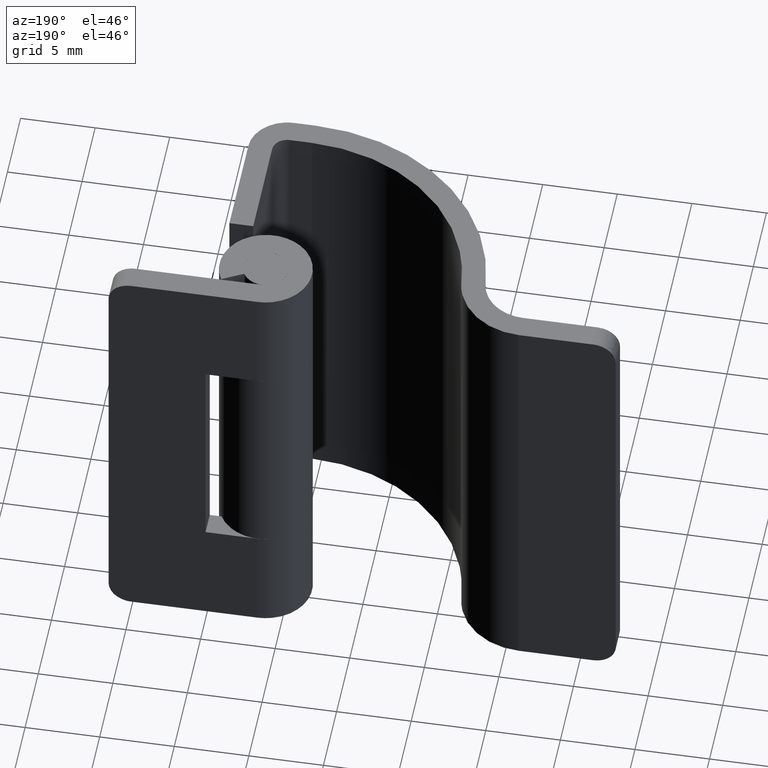
[diagram: clean part render]
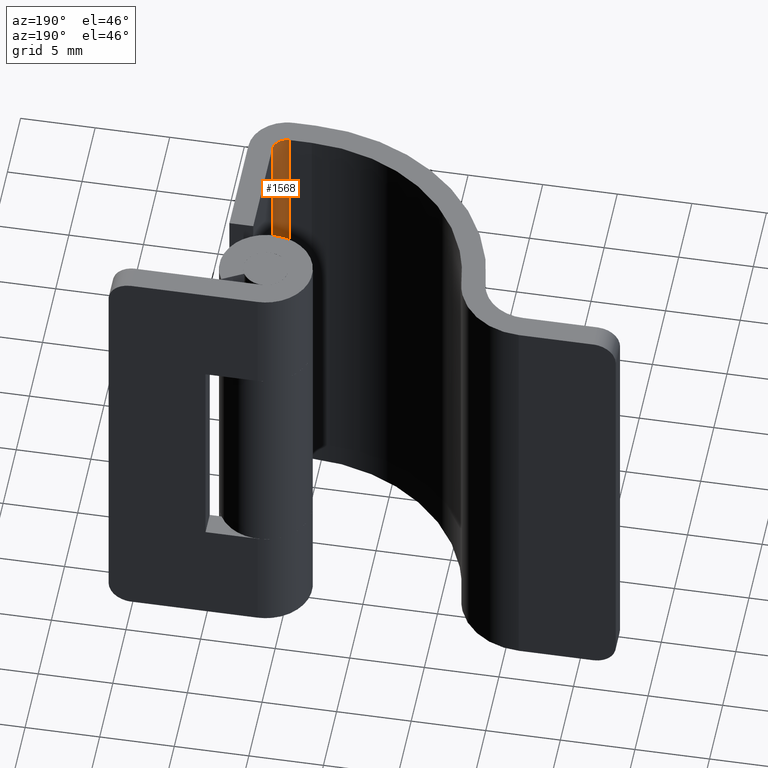
[diagram: same view with one face highlighted and labeled with its STEP entity id]
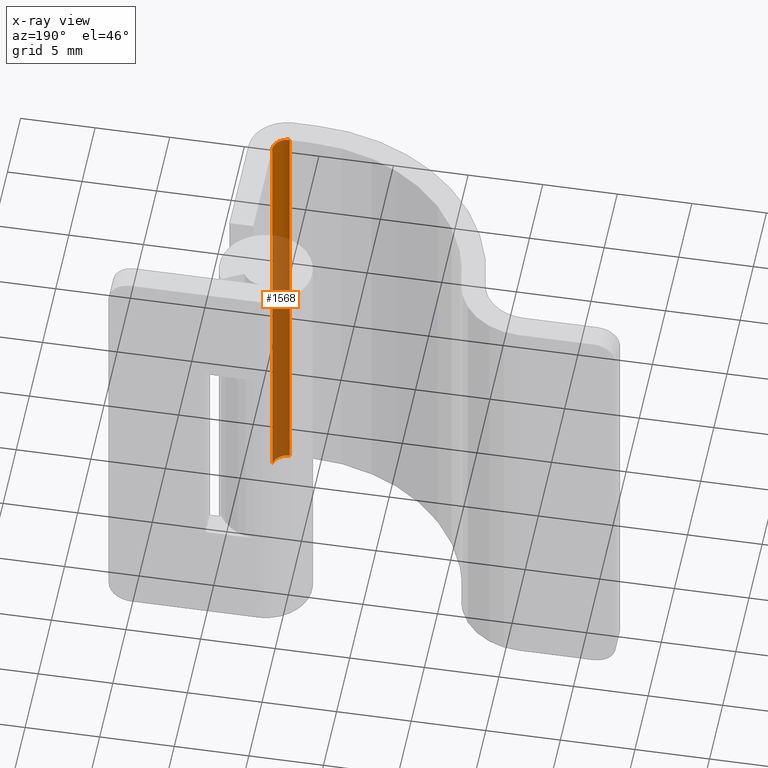
[diagram: x-ray of the same camera — body ghosted, the highlighted face saturated]
A machine part, auxiliary view. The second image highlights one B-rep face of the part: STEP entity #1568.
The next image is the same camera in x-ray: the body ghosted, the highlighted face saturated — about 70% of this face is hidden behind the body in this view.
In plain terms, the highlighted face is a freeform B-spline surface patch.
Its self-contained STEP definition (entity closure, byte-faithful):
#1493=CARTESIAN_POINT('',(-3.0,-11.900002000000001,30.0));
#1494=VERTEX_POINT('',#1493);
#1500=CARTESIAN_POINT('',(-3.0,-11.900002000000001,0.0));
#1501=VERTEX_POINT('',#1500);
#1502=CARTESIAN_POINT('',(-3.0,-11.900002000000001,0.0));
#1503=CARTESIAN_POINT('',(-3.0,-11.900002000000001,30.0));
#1504=QUASI_UNIFORM_CURVE('',1,(#1502,#1503),.UNSPECIFIED.,.F.,.U.);
#1505=EDGE_CURVE('',#1501,#1494,#1504,.T.);
#1516=CARTESIAN_POINT('',(-2.000342675024443,-10.873825051692130,-0.750000000000001));
#1517=CARTESIAN_POINT('',(-2.000342675024443,-10.873825051692130,30.768750000000001));
#1518=CARTESIAN_POINT('',(-1.971775548804007,-11.964759588594118,-0.750000000000001));
#1519=CARTESIAN_POINT('',(-1.971775548804007,-11.964759588594118,30.768750000000001));
#1520=CARTESIAN_POINT('',(-3.061048539534854,-11.898136798421870,-0.750000000000001));
#1521=CARTESIAN_POINT('',(-3.061048539534854,-11.898136798421870,30.768750000000001));
#1529=(BOUNDED_SURFACE()B_SPLINE_SURFACE(1,2,((#1516,#1518,#1520),(#1517,#1519,#1521)),.UNSPECIFIED.,.F.,.F.,.U.)B_SPLINE_SURFACE_WITH_KNOTS((2,2),(3,3),(0.0,31.518750000000001),(0.0,1.0),.UNSPECIFIED.)GEOMETRIC_REPRESENTATION_ITEM()RATIONAL_B_SPLINE_SURFACE(((1.0,0.675590207615660,1.0),(1.0,0.675590207615660,1.0)))REPRESENTATION_ITEM('')SURFACE());
#1530=CARTESIAN_POINT('',(-2.0,-10.900002000000001,30.0));
#1531=VERTEX_POINT('',#1530);
#1532=CARTESIAN_POINT('',(-2.0,-10.900002000000001,30.0));
#1533=CARTESIAN_POINT('',(-2.000000000000000,-11.900002000000001,30.000000000000004));
#1534=CARTESIAN_POINT('',(-3.0,-11.900002000000001,30.0));
#1542=(BOUNDED_CURVE()B_SPLINE_CURVE(2,(#1532,#1533,#1534),.UNSPECIFIED.,.F.,.U.)CURVE()GEOMETRIC_REPRESENTATION_ITEM()QUASI_UNIFORM_CURVE()RATIONAL_B_SPLINE_CURVE((1.0,0.707106781186548,1.0))REPRESENTATION_ITEM(''));
#1543=EDGE_CURVE('',#1531,#1494,#1542,.T.);
#1544=ORIENTED_EDGE('',*,*,#1543,.F.);
#1545=CARTESIAN_POINT('',(-2.0,-10.900002000000001,0.0));
#1546=VERTEX_POINT('',#1545);
#1547=CARTESIAN_POINT('',(-2.0,-10.900002000000001,0.0));
#1548=CARTESIAN_POINT('',(-2.0,-10.900002000000001,30.0));
#1549=QUASI_UNIFORM_CURVE('',1,(#1547,#1548),.UNSPECIFIED.,.F.,.U.);
#1550=EDGE_CURVE('',#1546,#1531,#1549,.T.);
#1551=ORIENTED_EDGE('',*,*,#1550,.F.);
#1552=CARTESIAN_POINT('',(-2.0,-10.900002000000001,0.0));
#1553=CARTESIAN_POINT('',(-2.000000000000000,-11.900002000000001,0.0));
#1554=CARTESIAN_POINT('',(-3.0,-11.900002000000001,0.0));
#1562=(BOUNDED_CURVE()B_SPLINE_CURVE(2,(#1552,#1553,#1554),.UNSPECIFIED.,.F.,.U.)CURVE()GEOMETRIC_REPRESENTATION_ITEM()QUASI_UNIFORM_CURVE()RATIONAL_B_SPLINE_CURVE((1.0,0.707106781186548,1.0))REPRESENTATION_ITEM(''));
#1563=EDGE_CURVE('',#1546,#1501,#1562,.T.);
#1564=ORIENTED_EDGE('',*,*,#1563,.T.);
#1565=ORIENTED_EDGE('',*,*,#1505,.T.);
#1566=EDGE_LOOP('',(#1544,#1551,#1564,#1565));
#1567=FACE_OUTER_BOUND('',#1566,.T.);
#1568=ADVANCED_FACE('',(#1567),#1529,.F.);